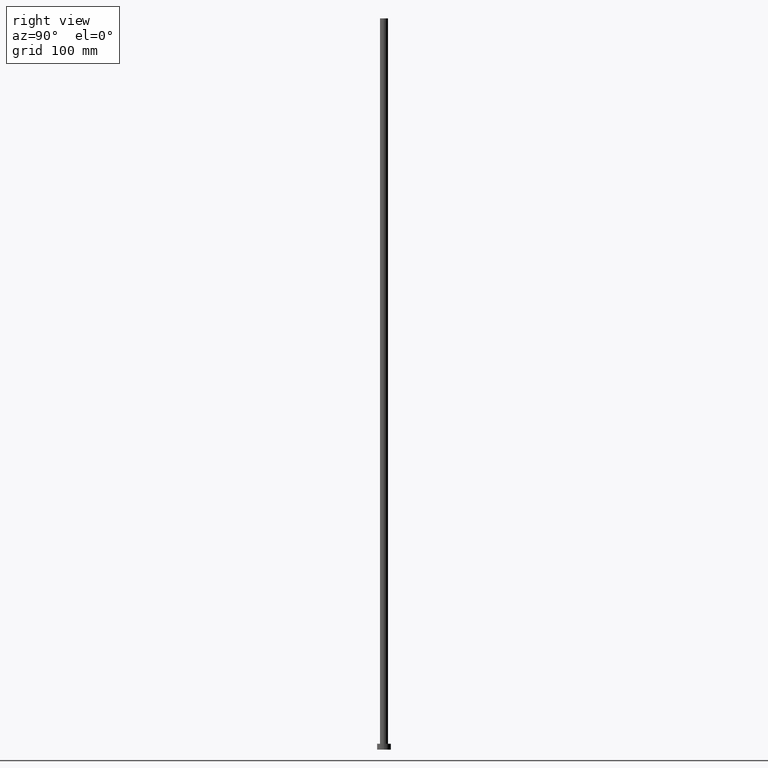
[diagram: clean part render]
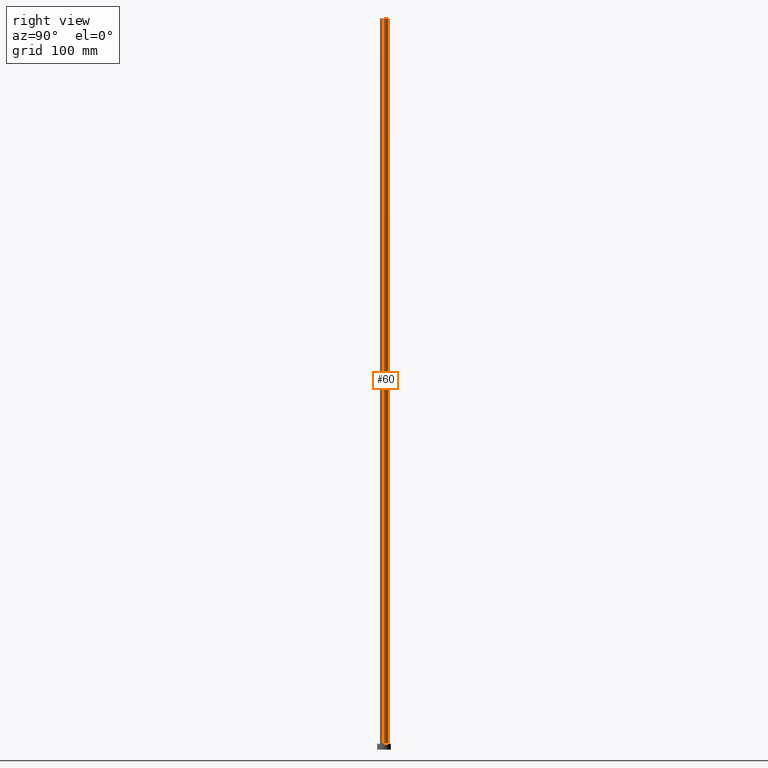
[diagram: same view with one face highlighted and labeled with its STEP entity id]
A machine part, right view. The second image highlights one B-rep face of the part: STEP entity #60.
In plain terms, the highlighted cylindrical surface (edge-blend (fillet) strip) has radius 3.5 mm, axis along (-0, -0, -1).
Its self-contained STEP definition (entity closure, byte-faithful):
#7 = LINE ( 'NONE', #28, #126 ) ;
#24 = CARTESIAN_POINT ( 'NONE',  ( 3.500000000000000000, 4.286263797015736595E-16, 630.0000000000000000 ) ) ;
#28 = CARTESIAN_POINT ( 'NONE',  ( -3.500000000000000000, 0.000000000000000000, 630.0000000000000000 ) ) ;
#29 = CARTESIAN_POINT ( 'NONE',  ( 3.500000000000000000, 4.286263797015736595E-16, 630.0000000000000000 ) ) ;
#43 = AXIS2_PLACEMENT_3D ( 'NONE', #48, #127, #83 ) ;
#46 = LINE ( 'NONE', #24, #244 ) ;
#48 = CARTESIAN_POINT ( 'NONE',  ( 0.000000000000000000, 0.000000000000000000, 630.0000000000000000 ) ) ;
#55 = EDGE_CURVE ( 'NONE', #227, #150, #46, .T. ) ;
#60 = ADVANCED_FACE ( 'NONE', ( #146 ), #104, .T. ) ;
#63 = DIRECTION ( 'NONE',  ( -0.000000000000000000, -0.000000000000000000, -1.000000000000000000 ) ) ;
#71 = DIRECTION ( 'NONE',  ( 0.000000000000000000, 0.000000000000000000, 1.000000000000000000 ) ) ;
#72 = ORIENTED_EDGE ( 'NONE', *, *, #209, .F. ) ;
#75 = ORIENTED_EDGE ( 'NONE', *, *, #55, .T. ) ;
#76 = VERTEX_POINT ( 'NONE', #120 ) ;
#79 = AXIS2_PLACEMENT_3D ( 'NONE', #125, #178, #121 ) ;
#83 = DIRECTION ( 'NONE',  ( 1.000000000000000000, 0.000000000000000000, 0.000000000000000000 ) ) ;
#92 = DIRECTION ( 'NONE',  ( 1.000000000000000000, 0.000000000000000000, 0.000000000000000000 ) ) ;
#104 = CYLINDRICAL_SURFACE ( 'NONE', #79, 3.500000000000000000 ) ;
#120 = CARTESIAN_POINT ( 'NONE',  ( -3.500000000000000000, 0.000000000000000000, 5.000000000000000000 ) ) ;
#121 = DIRECTION ( 'NONE',  ( -1.000000000000000000, 0.000000000000000000, 0.000000000000000000 ) ) ;
#125 = CARTESIAN_POINT ( 'NONE',  ( 0.000000000000000000, 0.000000000000000000, 630.0000000000000000 ) ) ;
#126 = VECTOR ( 'NONE', #63, 1000.000000000000000 ) ;
#127 = DIRECTION ( 'NONE',  ( 0.000000000000000000, 0.000000000000000000, 1.000000000000000000 ) ) ;
#128 = EDGE_CURVE ( 'NONE', #155, #76, #7, .T. ) ;
#131 = CARTESIAN_POINT ( 'NONE',  ( 0.000000000000000000, 0.000000000000000000, 5.000000000000000000 ) ) ;
#144 = CIRCLE ( 'NONE', #154, 3.500000000000000000 ) ;
#146 = FACE_OUTER_BOUND ( 'NONE', #254, .T. ) ;
#150 = VERTEX_POINT ( 'NONE', #158 ) ;
#152 = CIRCLE ( 'NONE', #43, 3.500000000000000000 ) ;
#154 = AXIS2_PLACEMENT_3D ( 'NONE', #131, #71, #92 ) ;
#155 = VERTEX_POINT ( 'NONE', #236 ) ;
#158 = CARTESIAN_POINT ( 'NONE',  ( 3.500000000000000000, 4.286263797015736595E-16, 5.000000000000000000 ) ) ;
#178 = DIRECTION ( 'NONE',  ( -0.000000000000000000, -0.000000000000000000, -1.000000000000000000 ) ) ;
#198 = DIRECTION ( 'NONE',  ( -0.000000000000000000, -0.000000000000000000, -1.000000000000000000 ) ) ;
#206 = ORIENTED_EDGE ( 'NONE', *, *, #220, .T. ) ;
#209 = EDGE_CURVE ( 'NONE', #227, #155, #152, .T. ) ;
#212 = ORIENTED_EDGE ( 'NONE', *, *, #128, .F. ) ;
#220 = EDGE_CURVE ( 'NONE', #150, #76, #144, .T. ) ;
#227 = VERTEX_POINT ( 'NONE', #29 ) ;
#236 = CARTESIAN_POINT ( 'NONE',  ( -3.500000000000000000, 0.000000000000000000, 630.0000000000000000 ) ) ;
#244 = VECTOR ( 'NONE', #198, 1000.000000000000000 ) ;
#254 = EDGE_LOOP ( 'NONE', ( #72, #75, #206, #212 ) ) ;